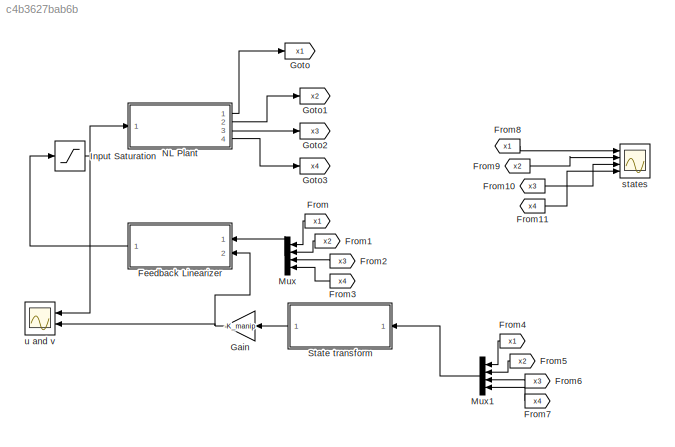
MODEL slx_c4b3627bab6b
KIND model
CONFIG AbsTol = auto
CONFIG FixedStep = auto
CONFIG MaxStep = auto
CONFIG MinStep = auto
CONFIG RelTol = 1e-3
CONFIG SampleTimeConstraint = Unconstrained
CONFIG Solver = VariableStepAuto
CONFIG SolverMode = Auto
CONFIG SolverName = VariableStepAuto
CONFIG StartTime = 0.0
CONFIG StopTime = 70
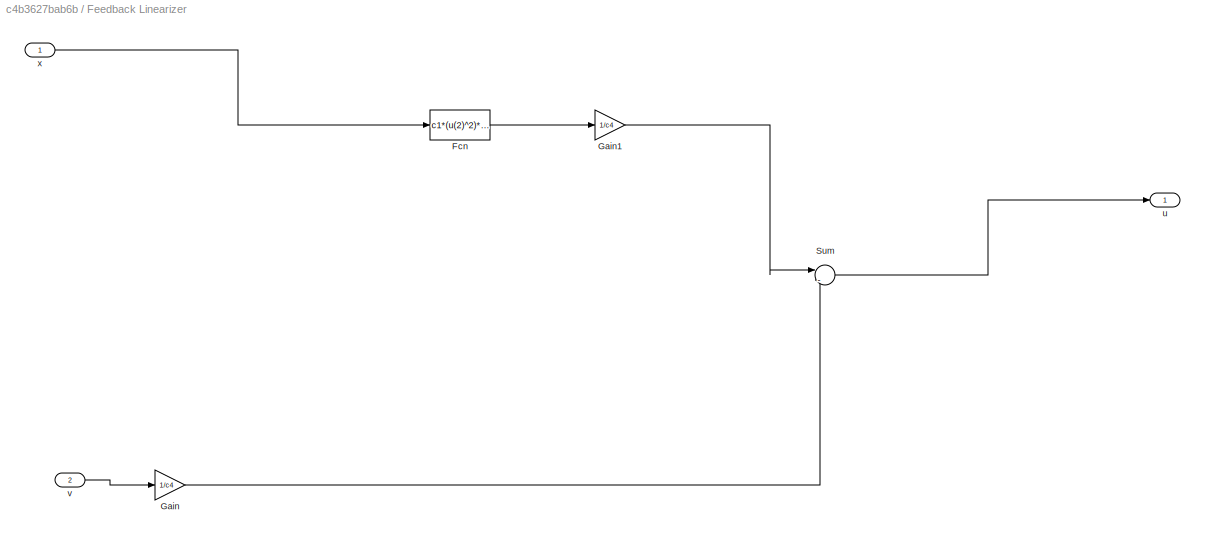
BLOCK [SubSystem] Feedback Linearizer
  Ports = [2, 1]
  RequestExecContextInheritance = off
  Variant = off
BLOCK [Fcn] Feedback Linearizer/Fcn
  Expr = c1*(u(2)^2)*sin(u(1)) - (c1*cos(u(1))-c2)*(c1*sin(u(1))+c2*(u(1)-u(3))) + c3*(u(1)-u(3))
BLOCK [Gain] Feedback Linearizer/Gain
  Gain = 1/c4
  OutDataTypeStr = Inherit: Inherit via internal rule
  ParamDataTypeStr = Inherit: Inherit via internal rule
  SaturateOnIntegerOverflow = off
BLOCK [Gain] Feedback Linearizer/Gain1
  Gain = 1/c4
  OutDataTypeStr = Inherit: Inherit via internal rule
  ParamDataTypeStr = Inherit: Inherit via internal rule
  SaturateOnIntegerOverflow = off
BLOCK [Sum] Feedback Linearizer/Sum
  IconShape = round
  InputSameDT = off
  Inputs = |-+
  OutDataTypeStr = Inherit: Inherit via internal rule
  Ports = [2, 1]
  SaturateOnIntegerOverflow = off
BLOCK [Outport] Feedback Linearizer/u
  IconDisplay = Port number
BLOCK [Inport] Feedback Linearizer/v
  IconDisplay = Port number
  Port = 2
BLOCK [Inport] Feedback Linearizer/x
  IconDisplay = Port number
BLOCK [From] From
  GotoTag = x1
BLOCK [From] From1
  GotoTag = x2
BLOCK [From] From10
  GotoTag = x3
BLOCK [From] From11
  GotoTag = x4
BLOCK [From] From2
  GotoTag = x3
BLOCK [From] From3
  GotoTag = x4
BLOCK [From] From4
  GotoTag = x1
BLOCK [From] From5
  GotoTag = x2
BLOCK [From] From6
  GotoTag = x3
BLOCK [From] From7
  GotoTag = x4
BLOCK [From] From8
  GotoTag = x1
BLOCK [From] From9
  GotoTag = x2
BLOCK [Gain] Gain
  Gain = -K_manip
  Multiplication = Matrix(K*u) (u vector)
  OutDataTypeStr = Inherit: Inherit via internal rule
  ParamDataTypeStr = Inherit: Inherit via internal rule
  SaturateOnIntegerOverflow = off
BLOCK [Goto] Goto
  GotoTag = x1
BLOCK [Goto] Goto1
  GotoTag = x2
BLOCK [Goto] Goto2
  GotoTag = x3
BLOCK [Goto] Goto3
  GotoTag = x4
BLOCK [Saturate] Input Saturation
  InputPortMap = u0
  LinearizeAsGain = off
  LowerLimit = u_min
  Ports = [1, 1]
  UpperLimit = u_max
BLOCK [Mux] Mux
  DisplayOption = bar
  Ports = [4, 1]
BLOCK [Mux] Mux1
  DisplayOption = bar
  Ports = [4, 1]
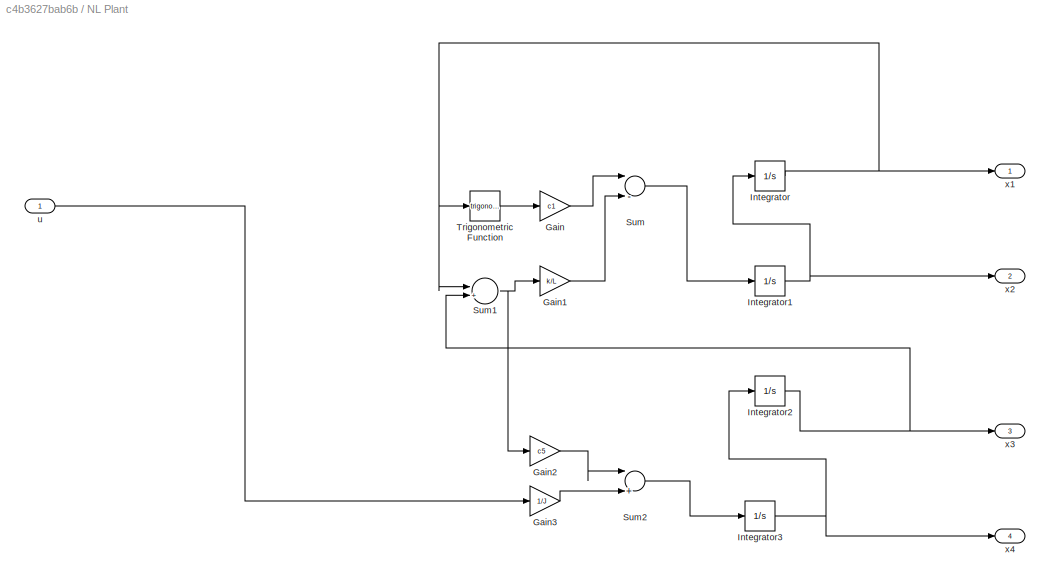
BLOCK [SubSystem] NL Plant
  Ports = [1, 4]
  RequestExecContextInheritance = off
  Variant = off
BLOCK [Gain] NL Plant/Gain
  Gain = c1
  OutDataTypeStr = Inherit: Inherit via internal rule
  ParamDataTypeStr = Inherit: Inherit via internal rule
  SaturateOnIntegerOverflow = off
BLOCK [Gain] NL Plant/Gain1
  Gain = k/L
  OutDataTypeStr = Inherit: Inherit via internal rule
  ParamDataTypeStr = Inherit: Inherit via internal rule
  SaturateOnIntegerOverflow = off
BLOCK [Gain] NL Plant/Gain2
  Gain = c5
  OutDataTypeStr = Inherit: Inherit via internal rule
  ParamDataTypeStr = Inherit: Inherit via internal rule
  SaturateOnIntegerOverflow = off
BLOCK [Gain] NL Plant/Gain3
  Gain = 1/J
  OutDataTypeStr = Inherit: Inherit via internal rule
  ParamDataTypeStr = Inherit: Inherit via internal rule
  SaturateOnIntegerOverflow = off
BLOCK [Integrator] NL Plant/Integrator
  InitialCondition = x1_m_0
  Ports = [1, 1]
BLOCK [Integrator] NL Plant/Integrator1
  InitialCondition = x2_m_0
  Ports = [1, 1]
BLOCK [Integrator] NL Plant/Integrator2
  InitialCondition = x3_m_0
  Ports = [1, 1]
BLOCK [Integrator] NL Plant/Integrator3
  InitialCondition = x4_m_0
  Ports = [1, 1]
BLOCK [Sum] NL Plant/Sum
  InputSameDT = off
  Inputs = |--
  OutDataTypeStr = Inherit: Inherit via internal rule
  Ports = [2, 1]
  SaturateOnIntegerOverflow = off
BLOCK [Sum] NL Plant/Sum1
  InputSameDT = off
  Inputs = |+-
  OutDataTypeStr = Inherit: Inherit via internal rule
  Ports = [2, 1]
  SaturateOnIntegerOverflow = off
BLOCK [Sum] NL Plant/Sum2
  InputSameDT = off
  Inputs = |++
  OutDataTypeStr = Inherit: Inherit via internal rule
  Ports = [2, 1]
  SaturateOnIntegerOverflow = off
BLOCK [Trigonometry] NL Plant/Trigonometric Function
  Ports = [1, 1]
BLOCK [Inport] NL Plant/u
  IconDisplay = Port number
BLOCK [Outport] NL Plant/x1
  IconDisplay = Port number
BLOCK [Outport] NL Plant/x2
  IconDisplay = Port number
  Port = 2
BLOCK [Outport] NL Plant/x3
  IconDisplay = Port number
  Port = 3
BLOCK [Outport] NL Plant/x4
  IconDisplay = Port number
  Port = 4
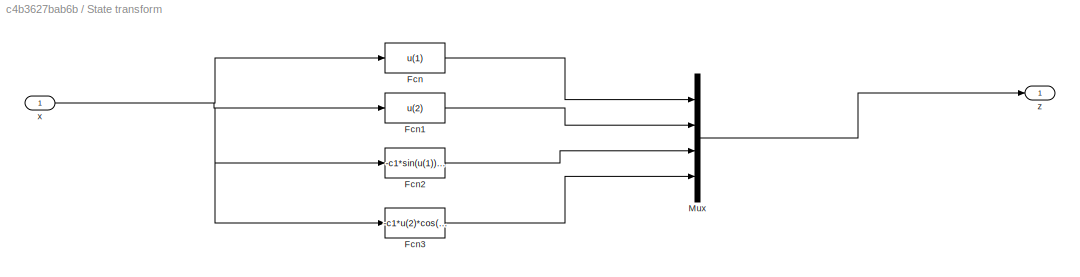
BLOCK [SubSystem] State transform
  Ports = [1, 1]
  RequestExecContextInheritance = off
  Variant = off
BLOCK [Fcn] State transform/Fcn
  Expr = u(1)
BLOCK [Fcn] State transform/Fcn1
  Expr = u(2)
BLOCK [Fcn] State transform/Fcn2
  Expr = -c1*sin(u(1))-c2*(u(1)-u(3))
BLOCK [Fcn] State transform/Fcn3
  Expr = -c1*u(2)*cos(u(1))-c2*(u(2)-u(4))
BLOCK [Mux] State transform/Mux
  DisplayOption = bar
  Ports = [4, 1]
BLOCK [Inport] State transform/x
  IconDisplay = Port number
BLOCK [Outport] State transform/z
  IconDisplay = Port number
BLOCK [Scope] states
  NumInputPorts = 4
  Ports = [4]
  ScopeSpecificationString = Simulink.scopes.TimeScopeBlockCfg('CurrentConfiguration', extmgr.ConfigurationSet(extmgr.Configuration('Core','General UI',true),extmgr.Configuration('Core','Source UI',true),extmgr.Configuration('Sources','WiredSimulink',true,'DataLoggingVariableName','ScopeData1'),extmgr.Configuration('Visuals','Time Domain',true,'SerializedDisplays',{struct('MinYLimReal','-1.06048','MaxYLimReal','1.69034','YLab...<+3488ch>
BLOCK [Scope] u and v
  NumInputPorts = 2
  Ports = [2]
  ScopeSpecificationString = Simulink.scopes.TimeScopeBlockCfg('CurrentConfiguration', extmgr.ConfigurationSet(extmgr.Configuration('Core','General UI',true),extmgr.Configuration('Core','Source UI',true),extmgr.Configuration('Sources','WiredSimulink',true),extmgr.Configuration('Visuals','Time Domain',true,'SerializedDisplays',{struct('MinYLimReal','-37.5','MaxYLimReal','37.5','YLabelReal','','MinYLimMag','0.00000','MaxYLimMag...<+2003ch>
LINE Feedback Linearizer/Fcn:1 -> Feedback Linearizer/Gain1:1
LINE Feedback Linearizer/Gain1:1 -> Feedback Linearizer/Sum:1
LINE Feedback Linearizer/Gain:1 -> Feedback Linearizer/Sum:2
LINE Feedback Linearizer/Sum:1 -> Feedback Linearizer/u:1
LINE Feedback Linearizer/v:1 -> Feedback Linearizer/Gain:1
LINE Feedback Linearizer/x:1 -> Feedback Linearizer/Fcn:1
LINE Feedback Linearizer:1 -> Input Saturation:1
LINE From10:1 -> states:3
LINE From11:1 -> states:4
LINE From1:1 -> Mux:2
LINE From2:1 -> Mux:3
LINE From3:1 -> Mux:4
LINE From4:1 -> Mux1:1
LINE From5:1 -> Mux1:2
LINE From6:1 -> Mux1:3
LINE From7:1 -> Mux1:4
LINE From8:1 -> states:1
LINE From9:1 -> states:2
LINE From:1 -> Mux:1
NET Gain:1 -> Feedback Linearizer:2, u and v:2
NET Input Saturation:1 -> NL Plant:1, u and v:1
LINE Mux1:1 -> State transform:1
LINE Mux:1 -> Feedback Linearizer:1
LINE NL Plant/Gain1:1 -> NL Plant/Sum:2
LINE NL Plant/Gain2:1 -> NL Plant/Sum2:1
LINE NL Plant/Gain3:1 -> NL Plant/Sum2:2
LINE NL Plant/Gain:1 -> NL Plant/Sum:1
NET NL Plant/Integrator1:1 -> NL Plant/Integrator:1, NL Plant/x2:1
NET NL Plant/Integrator2:1 -> NL Plant/Sum1:2, NL Plant/x3:1
NET NL Plant/Integrator3:1 -> NL Plant/Integrator2:1, NL Plant/x4:1
NET NL Plant/Integrator:1 -> NL Plant/Sum1:1, NL Plant/Trigonometric Function:1, NL Plant/x1:1
NET NL Plant/Sum1:1 -> NL Plant/Gain1:1, NL Plant/Gain2:1
LINE NL Plant/Sum2:1 -> NL Plant/Integrator3:1
LINE NL Plant/Sum:1 -> NL Plant/Integrator1:1
LINE NL Plant/Trigonometric Function:1 -> NL Plant/Gain:1
LINE NL Plant/u:1 -> NL Plant/Gain3:1
LINE NL Plant:1 -> Goto:1
LINE NL Plant:2 -> Goto1:1
LINE NL Plant:3 -> Goto2:1
LINE NL Plant:4 -> Goto3:1
LINE State transform/Fcn1:1 -> State transform/Mux:2
LINE State transform/Fcn2:1 -> State transform/Mux:3
LINE State transform/Fcn3:1 -> State transform/Mux:4
LINE State transform/Fcn:1 -> State transform/Mux:1
LINE State transform/Mux:1 -> State transform/z:1
NET State transform/x:1 -> State transform/Fcn1:1, State transform/Fcn2:1, State transform/Fcn3:1, State transform/Fcn:1
LINE State transform:1 -> Gain:1
note: NET lines group one-source signal fan-out (src -> all destinations, sorted); 1:1 wires keep LINE
